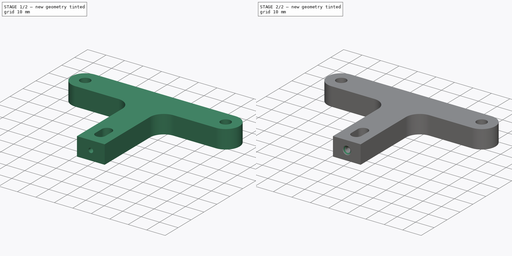
[diagram: build sequence overview — one tinted view per stage of 2, left to right]
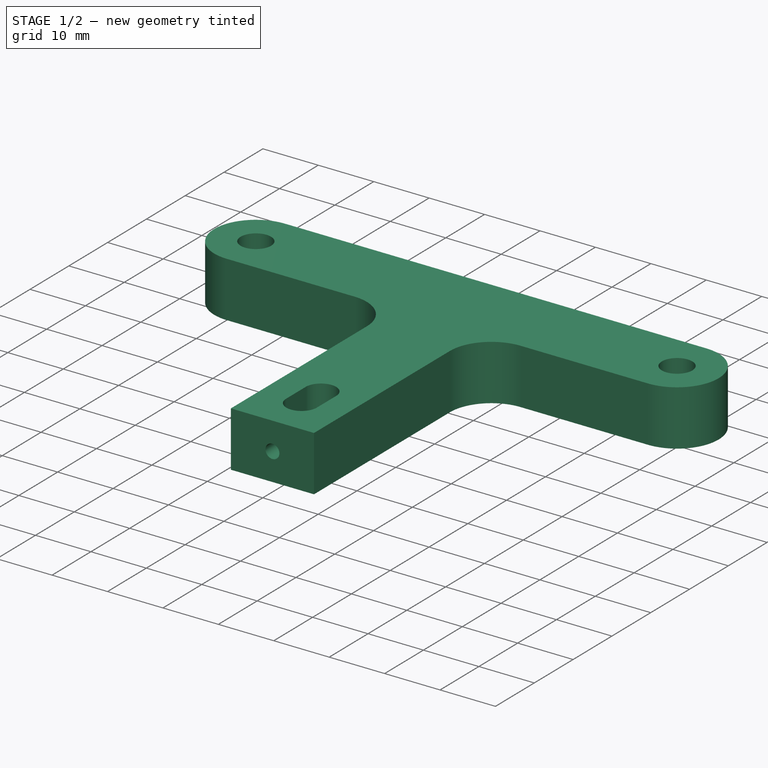
[diagram: stage 1 of 2 — iso view after this stage's code; geometry added in this stage tinted green]
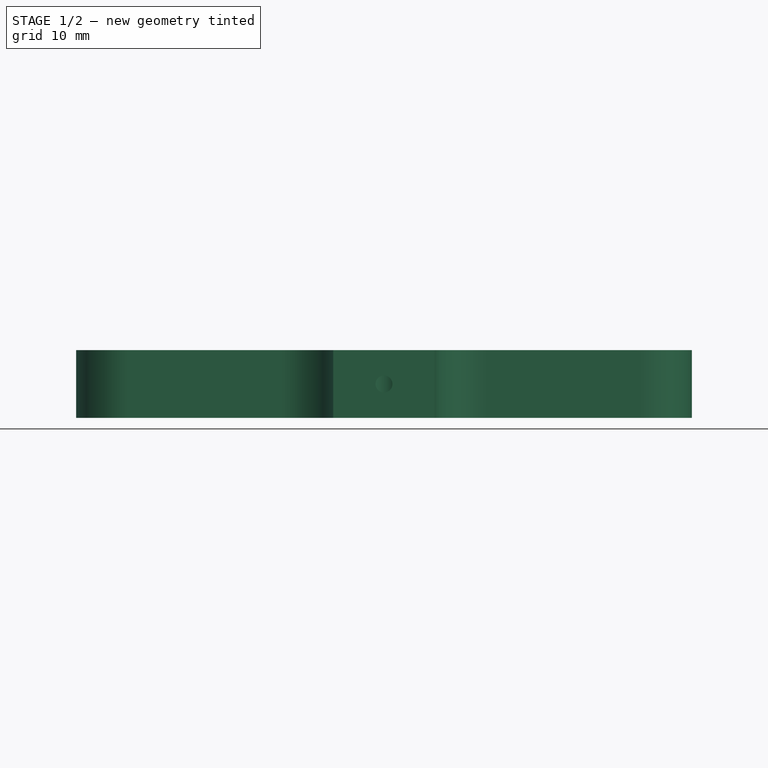
[diagram: stage 1 of 2 — front view after this stage's code; geometry added in this stage tinted green]
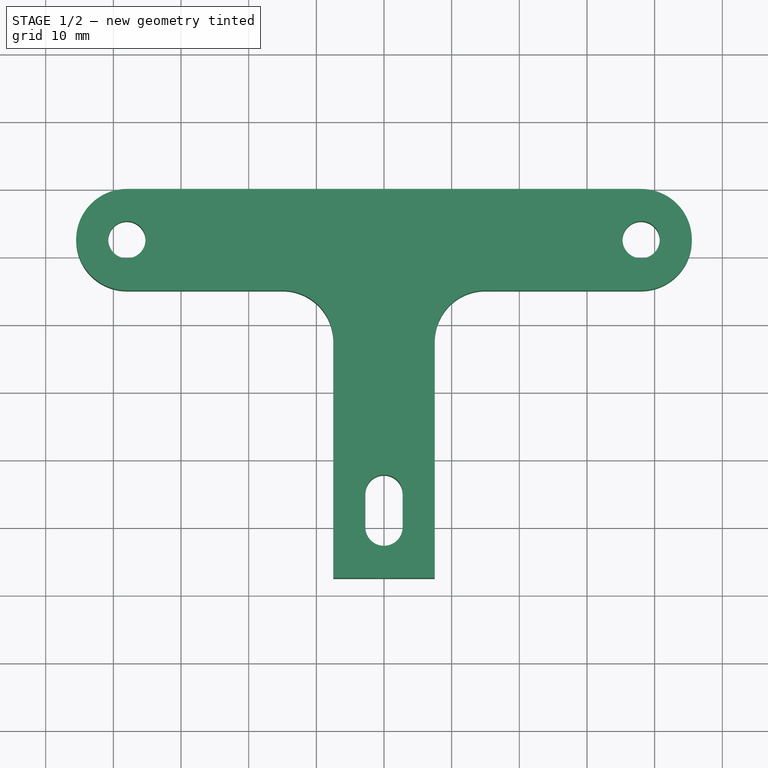
[diagram: stage 1 of 2 — top view after this stage's code; geometry added in this stage tinted green]
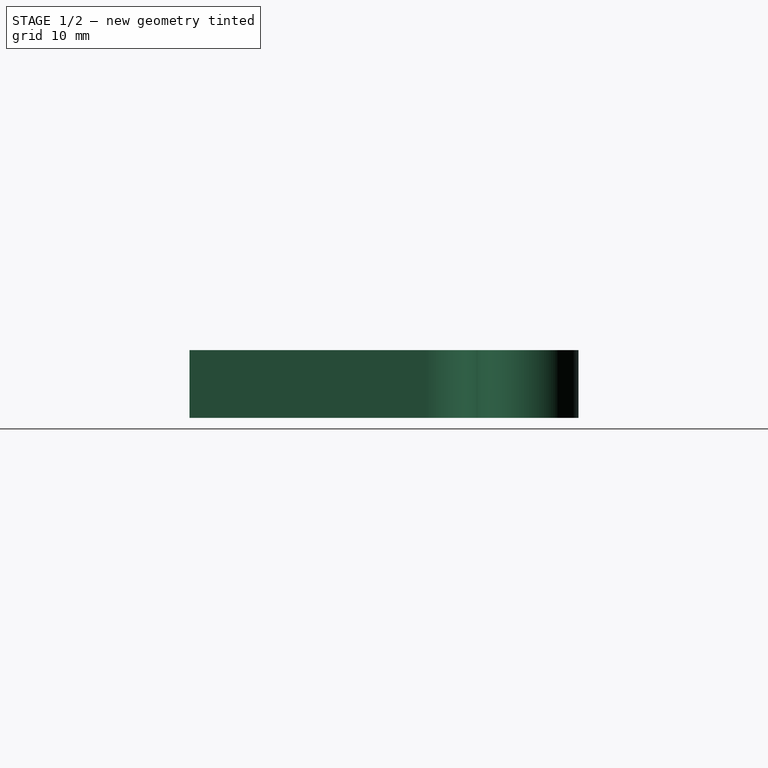
[diagram: stage 1 of 2 — right view after this stage's code; geometry added in this stage tinted green]
FCSTD DOCUMENT  (FreeCAD 0.20R29177 (Git))
Label: X gantry Bottum
License: All rights reserved
LicenseURL: http://en.wikipedia.org/wiki/All_rights_reserved
objects: Sketcher::SketchObject×2, PartDesign::Pad×1, PartDesign::Hole×1, PartDesign::Chamfer×1, PartDesign::Body×1
note: 9 computed .brp shape members not serialized (recipe doc carries the construction recipe); baked Part::Feature solids carry a one-line shape summary decoded from their .brp

FEATURE [Sketcher::SketchObject] Sketch
  FullyConstrained = true
  MapMode = 5
  Support = -> [XY_Plane]
  sketch-geometry (22):
    g0: ArcOfCircle CenterX=-38 CenterY=42.5 CenterZ=0 NormalX=0 NormalY=0 NormalZ=1 AngleXU=0 Radius=7.5 StartAngle=1.5708 EndAngle=4.71239
    g1: ArcOfCircle CenterX=38 CenterY=42.5 CenterZ=0 NormalX=0 NormalY=0 NormalZ=1 AngleXU=0 Radius=7.5 StartAngle=4.71239 EndAngle=7.85398
    g2: LineSegment StartX=-38 StartY=35 StartZ=0 EndX=-15 EndY=35 EndZ=0
    g3: LineSegment StartX=-38 StartY=50 StartZ=0 EndX=38 EndY=50 EndZ=0
    g4: LineSegment StartX=-7.5 StartY=27.5 StartZ=0 EndX=-7.5 EndY=-7.5 EndZ=0
    g5: LineSegment StartX=7.5 StartY=27.5 StartZ=0 EndX=7.5 EndY=-7.5 EndZ=0
    g6: LineSegment StartX=15 StartY=35 StartZ=0 EndX=38 EndY=35 EndZ=0
    g7: Circle CenterX=-38 CenterY=42.5 CenterZ=0 NormalX=0 NormalY=0 NormalZ=1 AngleXU=0 Radius=2.75
    g8: Circle CenterX=38 CenterY=42.5 CenterZ=0 NormalX=0 NormalY=0 NormalZ=1 AngleXU=0 Radius=2.75
    g9: ArcOfCircle CenterX=1e-16 CenterY=3e-16 CenterZ=0 NormalX=0 NormalY=0 NormalZ=1 AngleXU=0 Radius=2.75 StartAngle=3.14159 EndAngle=6.28319
    g10: ArcOfCircle CenterX=0 CenterY=5 CenterZ=0 NormalX=0 NormalY=0 NormalZ=1 AngleXU=0 Radius=2.75 StartAngle=1e-16 EndAngle=3.14159
    g11: LineSegment StartX=2.75 StartY=-3e-16 StartZ=0 EndX=2.75 EndY=5 EndZ=0
    g12: LineSegment StartX=-2.75 StartY=0 StartZ=0 EndX=-2.75 EndY=5 EndZ=0
    g13: LineSegment StartX=-2.75 StartY=5 StartZ=0 EndX=0 EndY=2.5 EndZ=0
    g14: LineSegment StartX=0 StartY=2.5 StartZ=0 EndX=-2.75 EndY=0 EndZ=0
    g15: ArcOfCircle CenterX=15 CenterY=27.5 CenterZ=0 NormalX=0 NormalY=0 NormalZ=1 AngleXU=0 Radius=7.5 StartAngle=1.5708 EndAngle=3.14159
    g16: ArcOfCircle CenterX=-15 CenterY=27.5 CenterZ=0 NormalX=0 NormalY=0 NormalZ=1 AngleXU=0 Radius=7.5 StartAngle=-1.8e-15 EndAngle=1.5708
    g17: LineSegment StartX=-7.5 StartY=-7.5 StartZ=0 EndX=7.5 EndY=-7.5 EndZ=0
    g18: LineSegment StartX=1e-16 StartY=3e-16 StartZ=0 EndX=1e-16 EndY=-7.5 EndZ=0
    g19: LineSegment StartX=-7.5 StartY=3e-16 StartZ=0 EndX=0 EndY=3e-16 EndZ=0
    g20: LineSegment StartX=1e-16 StartY=3e-16 StartZ=0 EndX=7.5 EndY=3e-16 EndZ=0
    g21: LineSegment StartX=-38 StartY=35 StartZ=0 EndX=-38 EndY=50 EndZ=0
  constraints (57):
    c: Tangent(g0,g3) = 1.5708
    c: Tangent(g0,g2) = -1.5708
    c: Coincident(g6,g1) = -1.5708
    c: Tangent(g3,g1) = 1.5708
    c: Horizontal(g2)
    c: Equal(g0,g1)
    c: Vertical(g4)
    c: Tangent(g2,g6)
    c: Equal(g4,g5)
    c: Equal(g6,g2)
    c: Horizontal(g3)
    c: DistanceX(g0,g1) = 76
    c: Coincident(g7,g0)
    c: Coincident(g8,g1)
    c: Equal(g8,g7)
    c: Tangent(g9,g12) = 1.5708
    c: Tangent(g9,g11) = -1.5708
    c: Tangent(g11,g10) = -1.5708
    c: Tangent(g12,g10) = 1.5708
    c: Vertical(g11)
    c: Equal(g9,g10)
    c: Coincident(g13,g10)
    c: PointOnObject(g13,g-2)
    c: Coincident(g14,g13)
    c: Coincident(g14,g9)
    c: Equal(g13,g14)
    c: DistanceY(g13,g0) = 40
    c: DistanceY(g11,g11) = 5
    c: Diameter(g7) = 5.5
    c: Vertical(g13,g10)
    c: Horizontal(g9,g-1)
    c: Equal(g7,g10)
    c: Tangent(g6,g15) = 1.5708
    c: Tangent(g5,g15) = -1.5708
    c: Tangent(g4,g16) = 1.5708
    c: Tangent(g2,g16) = 1.5708
    c: Vertical(g5)
    c: Horizontal(g17)
    c: Coincident(g17,g4)
    c: Coincident(g17,g5)
    c: Coincident(g18,g9)
    c: PointOnObject(g18,g17)
    c: Vertical(g18)
    c: PointOnObject(g19,g4)
    c: Coincident(g19,g9)
    c: Horizontal(g19)
    c: Coincident(g20,g9)
    c: PointOnObject(g20,g5)
    c: Horizontal(g20)
    c: Equal(g19,g18)
    c: Equal(g18,g20)
    c: DistanceX(g17,g17) = 15
    c: Coincident(g21,g0)
    c: Vertical(g21)
    c: PointOnObject(g21,g0)
    c: Equal(g21,g17)
    c: Equal(g16,g0)
FEATURE [PartDesign::Pad] Pad
  Direction = (0,0,1)
  Length = 10
  Length2 = 10
  Profile = -> Sketch
  ReferenceAxis = -> Sketch [N_Axis]
  Reversed = true
  Type = 0
FEATURE [Sketcher::SketchObject] Sketch002
  FullyConstrained = false
  MapMode = 5
  Placement = pos=(0,0,0) rot=(1,0,0;1.5708rad)
  Support = -> [XZ_Plane]
  sketch-geometry (1):
    g0: Circle CenterX=0 CenterY=-5 CenterZ=0 NormalX=0 NormalY=0 NormalZ=1 AngleXU=0 Radius=1.25
  constraints (2):
    c: PointOnObject(g0,g-2)
    c: DistanceY(g0,g-1) = 5
FEATURE [PartDesign::Hole] Hole
  BaseFeature = -> Pad
  CustomThreadClearance = 0
  Depth = 218.377
  DepthType = 1
  Diameter = 2.5
  DrillForDepth = false
  DrillPoint = 1
  DrillPointAngle = 118
  HoleCutCountersinkAngle = 90
  HoleCutCustomValues = false
  HoleCutDepth = 0
  HoleCutDiameter = 6.1
  HoleCutType = 0
  ModelThread = false
  Profile = -> Sketch002
  Reversed = true
  Tapered = false
  TaperedAngle = 90
  ThreadClass = 0
  ThreadDepth = 218.377
  ThreadDepthType = 0
  ThreadDirection = 0
  ThreadFit = 0
  ThreadSize = 0
  ThreadType = 0
  Threaded = false
  UseCustomThreadClearance = false
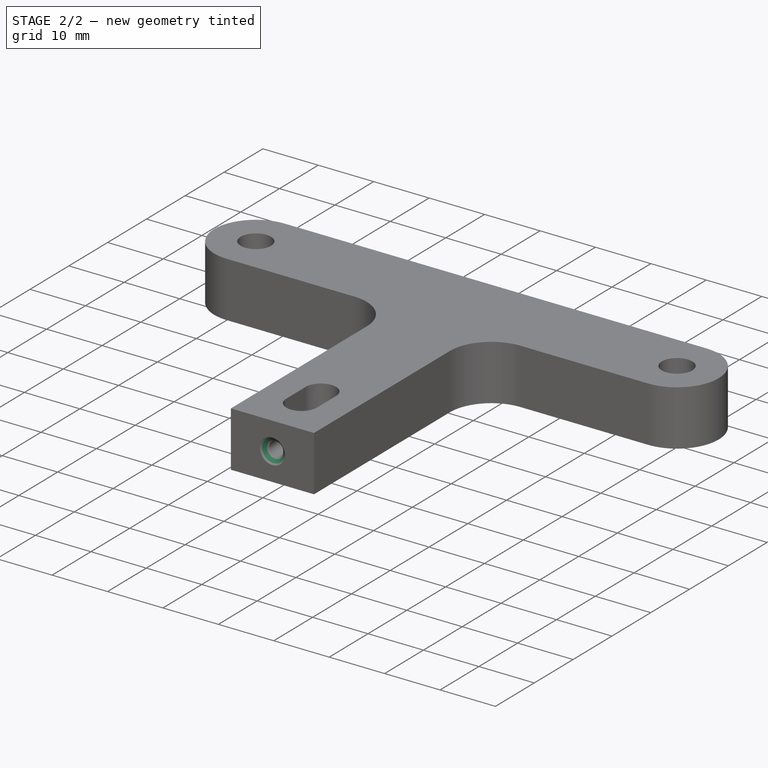
[diagram: stage 2 of 2 — iso view after this stage's code; geometry added in this stage tinted green]
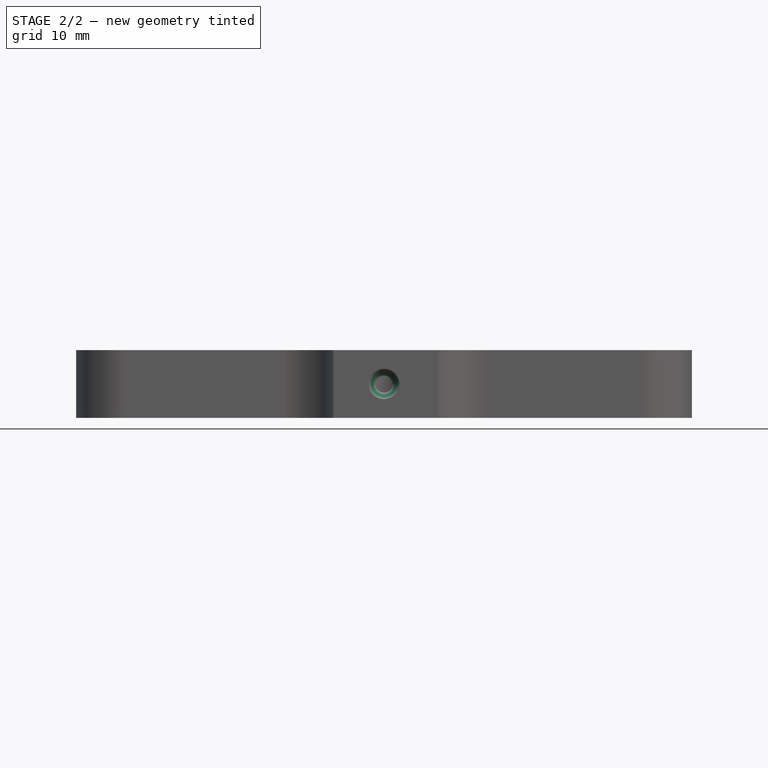
[diagram: stage 2 of 2 — front view after this stage's code; geometry added in this stage tinted green]
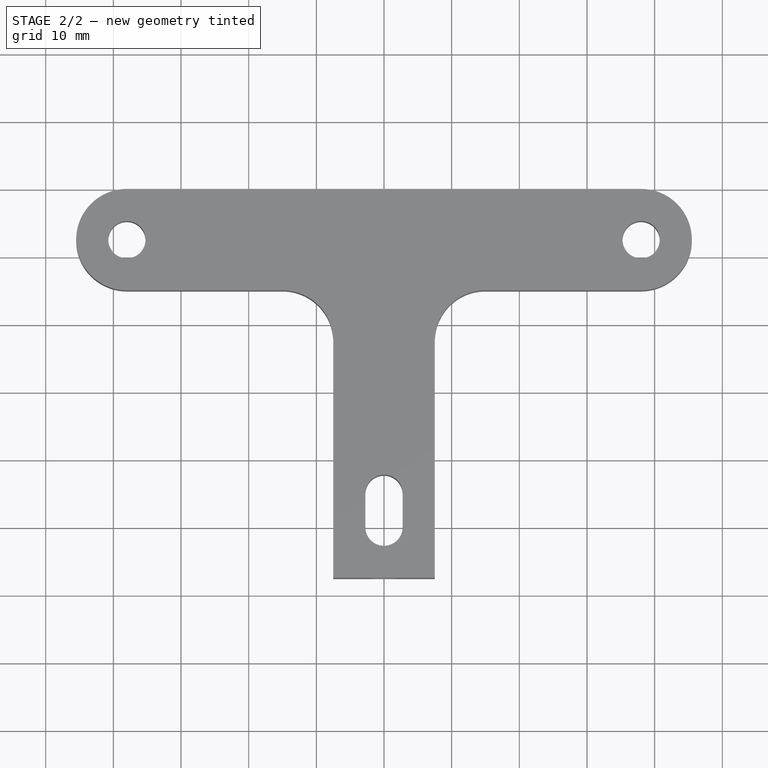
[diagram: stage 2 of 2 — top view after this stage's code; geometry added in this stage tinted green]
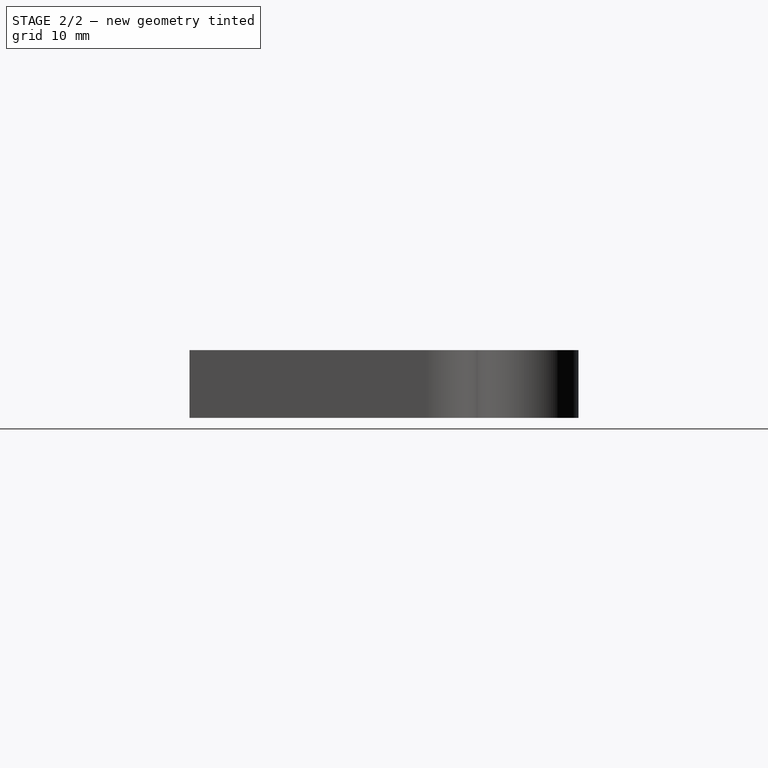
[diagram: stage 2 of 2 — right view after this stage's code; geometry added in this stage tinted green]
FEATURE [PartDesign::Chamfer] Chamfer
  Angle = 45
  Base = -> Hole [Edge43]
  BaseFeature = -> Hole
  ChamferType = 0
  FlipDirection = false
  Size = 1
  Size2 = 1
  SupportTransform = false
  UseAllEdges = false
FEATURE [PartDesign::Body] Body
  Group = -> [Sketch,Pad,Sketch002,Hole,Chamfer]
  Origin = -> Origin
  Tip = -> Chamfer
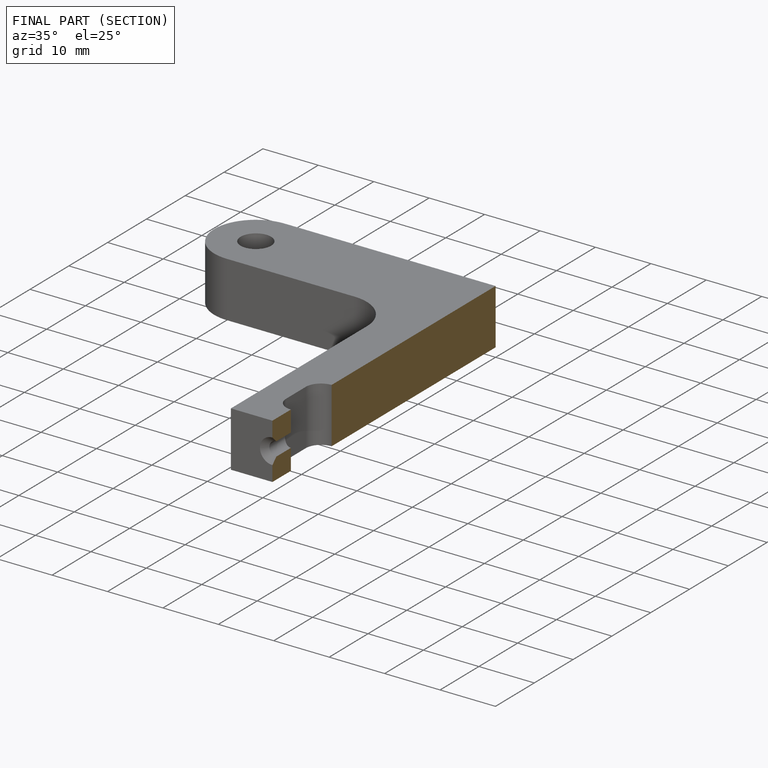
[diagram: finished part — half-section view (interior)]
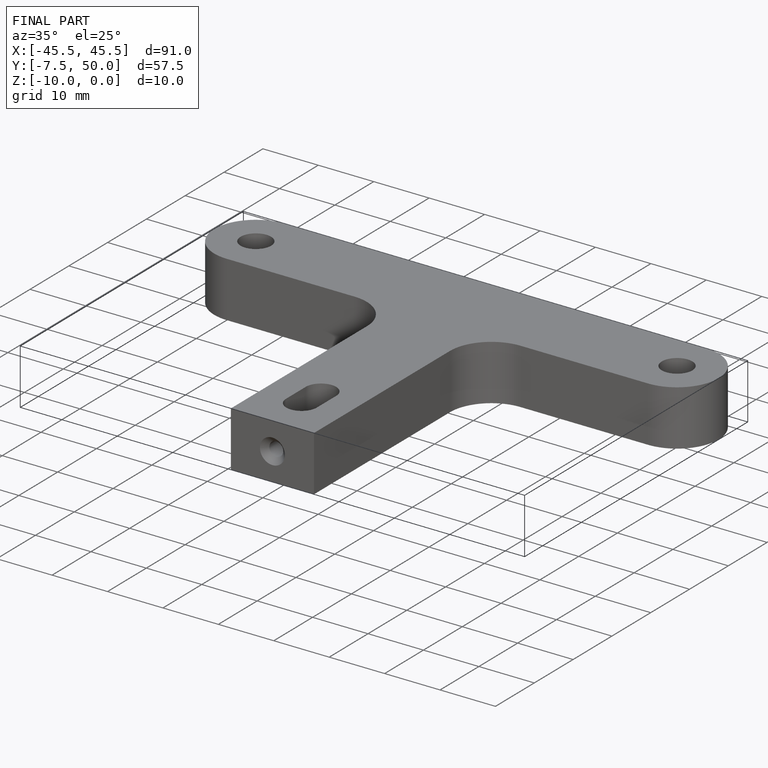
[diagram: finished part — iso view with bounding-box wireframe]
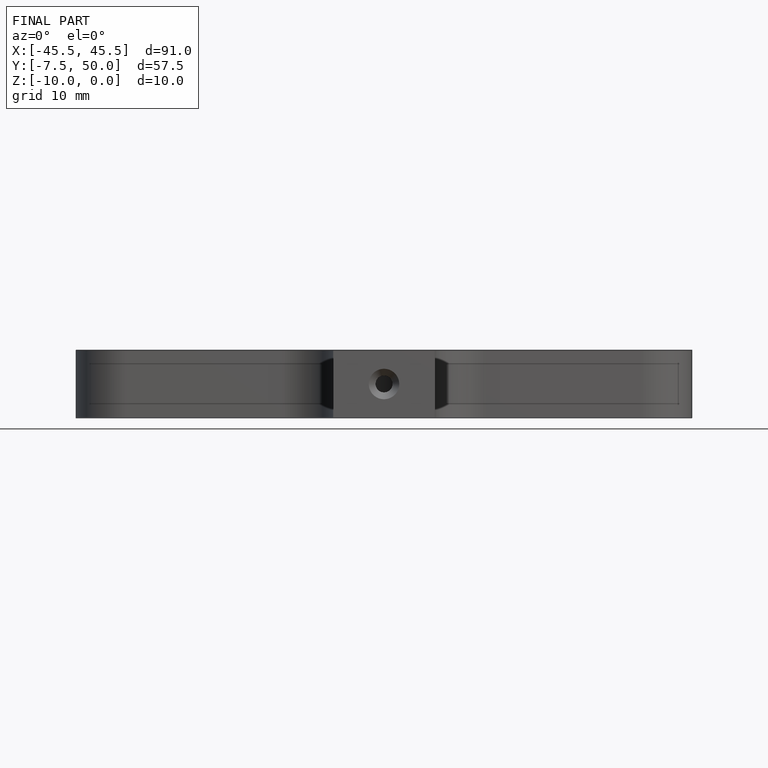
[diagram: finished part — front view with bounding-box wireframe]
